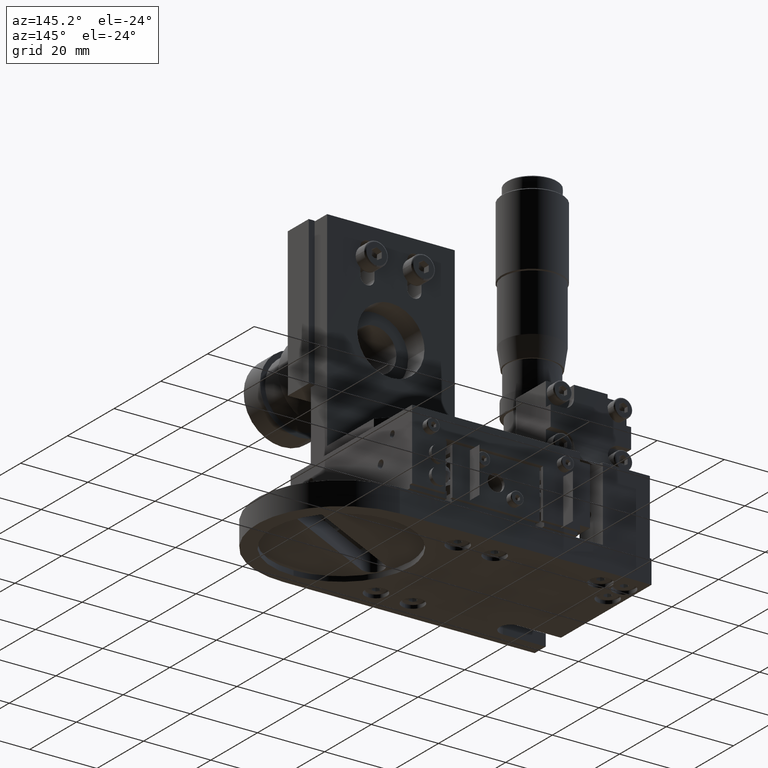
[diagram: clean part render]
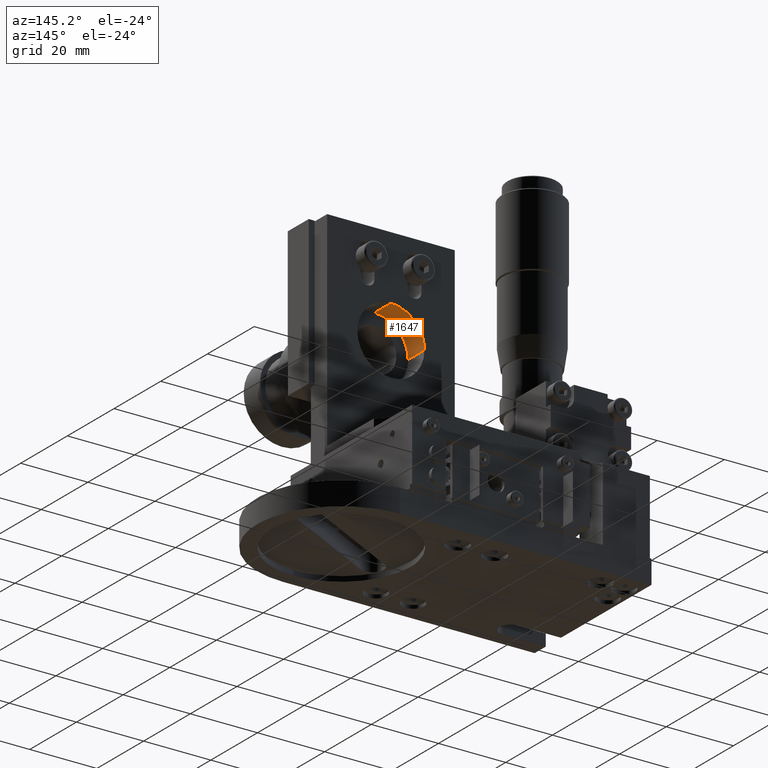
[diagram: same view with one face highlighted and labeled with its STEP entity id]
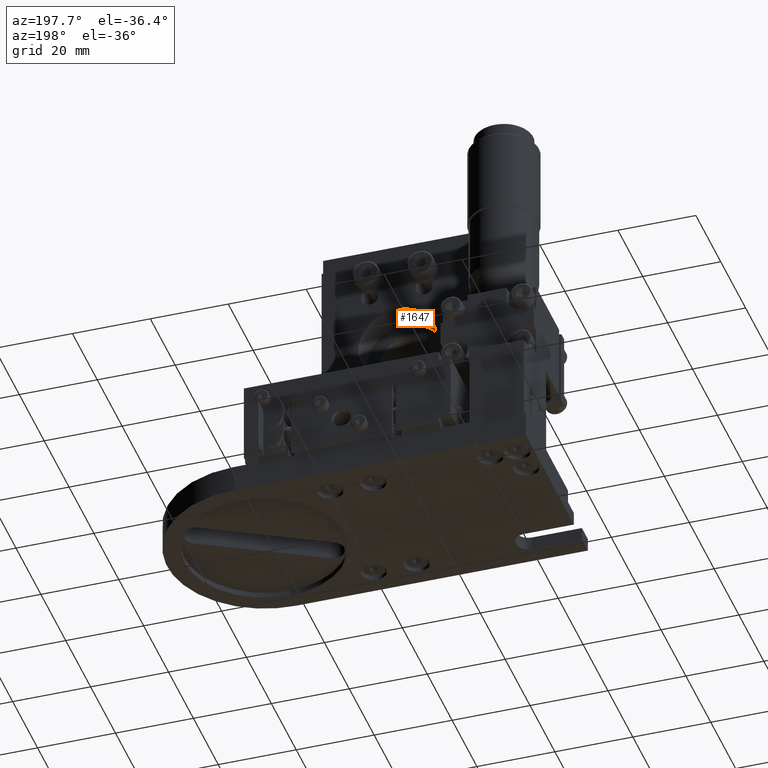
[diagram: same view with one face highlighted and labeled with its STEP entity id]
A machine part, auxiliary view. The second image highlights one B-rep face of the part: STEP entity #1647.
A second angle (auxiliary view) of the same face is appended — the face is thin or edge-on in the first view.
In plain terms, the highlighted face is a freeform B-spline surface patch.
Its self-contained STEP definition (entity closure, byte-faithful):
#147=B_SPLINE_SURFACE_WITH_KNOTS('',1,1,((#39274,#39275),(#39276,#39277)),
 .UNSPECIFIED.,.F.,.F.,.F.,(2,2),(2,2),(-41.9200801138667,3.92008011386633),
(-68.32,6.32000000000002),.UNSPECIFIED.);
#352=B_SPLINE_SURFACE_WITH_KNOTS('',1,1,((#44361,#44362),(#44363,#44364)),
 .UNSPECIFIED.,.F.,.F.,.F.,(2,2),(2,2),(-5.11907293417583,19.1209270658583),
(-12.122765408051,12.1173948197157),.UNSPECIFIED.);
#1647=ADVANCED_FACE('',(#2635),#35953,.T.);
#2635=FACE_OUTER_BOUND('',#3697,.T.);
#3697=EDGE_LOOP('',(#6851,#6852,#6853,#6854));
#6851=ORIENTED_EDGE('',*,*,#26362,.T.);
#6852=ORIENTED_EDGE('',*,*,#25095,.F.);
#6853=ORIENTED_EDGE('',*,*,#26363,.T.);
#6854=ORIENTED_EDGE('',*,*,#26364,.T.);
#9711=(
BOUNDED_CURVE()
B_SPLINE_CURVE(2,(#47091,#47092,#47093),.UNSPECIFIED.,.F.,.F.)
B_SPLINE_CURVE_WITH_KNOTS((3,3),(0.,15.707963267949),.UNSPECIFIED.)
CURVE()
GEOMETRIC_REPRESENTATION_ITEM()
RATIONAL_B_SPLINE_CURVE((1.,0.707106781186547,1.))
REPRESENTATION_ITEM('')
);
#9712=(
BOUNDED_CURVE()
B_SPLINE_CURVE(2,(#47094,#47095,#47096),.UNSPECIFIED.,.F.,.F.)
B_SPLINE_CURVE_WITH_KNOTS((3,3),(0.,15.707963267949),.UNSPECIFIED.)
CURVE()
GEOMETRIC_REPRESENTATION_ITEM()
RATIONAL_B_SPLINE_CURVE((1.,0.707106781186548,1.))
REPRESENTATION_ITEM('')
);
#10552=(
BOUNDED_CURVE()
B_SPLINE_CURVE(2,(#57274,#57275,#57276),.UNSPECIFIED.,.F.,.F.)
B_SPLINE_CURVE_WITH_KNOTS((3,3),(-62.8318530717959,-47.1238898038469),
 .UNSPECIFIED.)
CURVE()
GEOMETRIC_REPRESENTATION_ITEM()
RATIONAL_B_SPLINE_CURVE((1.,0.707106781186559,1.))
REPRESENTATION_ITEM('')
);
#10651=(
BOUNDED_CURVE()
B_SPLINE_CURVE(2,(#58337,#58338,#58339),.UNSPECIFIED.,.F.,.F.)
B_SPLINE_CURVE_WITH_KNOTS((3,3),(-62.8318530717959,-47.1238898038469),
 .UNSPECIFIED.)
CURVE()
GEOMETRIC_REPRESENTATION_ITEM()
RATIONAL_B_SPLINE_CURVE((1.,0.707106781186543,1.))
REPRESENTATION_ITEM('')
);
#11864=PCURVE('',#147,#17154);
#14113=PCURVE('',#35953,#19403);
#14114=PCURVE('',#35953,#19404);
#14115=PCURVE('',#35953,#19405);
#14116=PCURVE('',#35953,#19406);
#14117=PCURVE('',#35954,#19407);
#14120=PCURVE('',#35954,#19410);
#14408=PCURVE('',#352,#19698);
#17154=DEFINITIONAL_REPRESENTATION('',(#9712),#78139);
#19403=DEFINITIONAL_REPRESENTATION('',(#30731),#78139);
#19404=DEFINITIONAL_REPRESENTATION('',(#30732),#78139);
#19405=DEFINITIONAL_REPRESENTATION('',(#30734),#78139);
#19406=DEFINITIONAL_REPRESENTATION('',(#30735),#78139);
#19407=DEFINITIONAL_REPRESENTATION('',(#30736),#78139);
#19410=DEFINITIONAL_REPRESENTATION('',(#30739),#78139);
#19698=DEFINITIONAL_REPRESENTATION('',(#10651),#78139);
#22316=SURFACE_CURVE('',#9711,(#11864,#14114),.PCURVE_S1.);
#23583=SURFACE_CURVE('',#30730,(#14113,#14120),.PCURVE_S1.);
#23584=SURFACE_CURVE('',#30733,(#14115,#14117),.PCURVE_S1.);
#23585=SURFACE_CURVE('',#10552,(#14116,#14408),.PCURVE_S1.);
#25095=EDGE_CURVE('',#33917,#34780,#22316,.T.);
#26362=EDGE_CURVE('',#34778,#34780,#23583,.T.);
#26363=EDGE_CURVE('',#33917,#34779,#23584,.T.);
#26364=EDGE_CURVE('',#34779,#34778,#23585,.T.);
#30730=B_SPLINE_CURVE_WITH_KNOTS('',1,(#57264,#57265),.UNSPECIFIED.,.F.,
 .F.,(2,2),(-7.83610823565233,-0.836108235652268),.UNSPECIFIED.);
#30731=B_SPLINE_CURVE_WITH_KNOTS('',1,(#57266,#57267),.UNSPECIFIED.,.F.,
 .F.,(2,2),(-7.83610823565233,-0.836108235652268),.UNSPECIFIED.);
#30732=B_SPLINE_CURVE_WITH_KNOTS('',1,(#57268,#57269),.UNSPECIFIED.,.F.,
 .F.,(2,2),(0.,15.707963267949),.UNSPECIFIED.);
#30733=B_SPLINE_CURVE_WITH_KNOTS('',1,(#57270,#57271),.UNSPECIFIED.,.F.,
 .F.,(2,2),(0.,7.00000000000006),.UNSPECIFIED.);
#30734=B_SPLINE_CURVE_WITH_KNOTS('',1,(#57272,#57273),.UNSPECIFIED.,.F.,
 .F.,(2,2),(0.,7.00000000000006),.UNSPECIFIED.);
#30735=B_SPLINE_CURVE_WITH_KNOTS('',1,(#57277,#57278),.UNSPECIFIED.,.F.,
 .F.,(2,2),(-62.8318530717959,-47.1238898038469),.UNSPECIFIED.);
#30736=B_SPLINE_CURVE_WITH_KNOTS('',1,(#57279,#57280),.UNSPECIFIED.,.F.,
 .F.,(2,2),(0.,7.00000000000006),.UNSPECIFIED.);
#30739=B_SPLINE_CURVE_WITH_KNOTS('',1,(#57285,#57286),.UNSPECIFIED.,.F.,
 .F.,(2,2),(-7.83610823565233,-0.836108235652268),.UNSPECIFIED.);
#33917=VERTEX_POINT('',#45718);
#34778=VERTEX_POINT('',#46579);
#34779=VERTEX_POINT('',#46580);
#34780=VERTEX_POINT('',#46581);
#35953=(
BOUNDED_SURFACE()
B_SPLINE_SURFACE(1,2,((#43797,#43798,#43799,#43800,#43801,#43802,#43803,
#43804,#43805),(#43806,#43807,#43808,#43809,#43810,#43811,#43812,#43813,
#43814)),.UNSPECIFIED.,.F.,.F.,.F.)
B_SPLINE_SURFACE_WITH_KNOTS((2,2),(3,2,2,2,3),(0.,8.6722164713046),(0.,
1.5707963267949,3.14159265358979,4.71238898038469,6.28318530717959),
 .UNSPECIFIED.)
GEOMETRIC_REPRESENTATION_ITEM()
RATIONAL_B_SPLINE_SURFACE(((1.,0.707106781186548,1.,0.707106781186548,1.,
0.707106781186548,1.,0.707106781186548,1.),(1.,0.707106781186548,1.,0.707106781186548,
1.,0.707106781186548,1.,0.707106781186548,1.)))
REPRESENTATION_ITEM('')
SURFACE()
);
#35954=(
BOUNDED_SURFACE()
B_SPLINE_SURFACE(1,2,((#43815,#43816,#43817,#43818,#43819,#43820,#43821,
#43822,#43823),(#43824,#43825,#43826,#43827,#43828,#43829,#43830,#43831,
#43832)),.UNSPECIFIED.,.F.,.F.,.F.)
B_SPLINE_SURFACE_WITH_KNOTS((2,2),(3,2,2,2,3),(0.,8.6722164713046),(0.,
1.5707963267949,3.14159265358979,4.71238898038469,6.28318530717959),
 .UNSPECIFIED.)
GEOMETRIC_REPRESENTATION_ITEM()
RATIONAL_B_SPLINE_SURFACE(((1.,0.707106781186548,1.,0.707106781186548,1.,
0.707106781186548,1.,0.707106781186548,1.),(1.,0.707106781186548,1.,0.707106781186548,
1.,0.707106781186548,1.,0.707106781186548,1.)))
REPRESENTATION_ITEM('')
SURFACE()
);
#39274=CARTESIAN_POINT('',(218.044839707535,39.8860449572591,-26.0457479532259));
#39275=CARTESIAN_POINT('',(218.044839707535,-34.7539550427409,-26.0457479532261));
#39276=CARTESIAN_POINT('',(172.20468970235,39.8860449572591,-26.0763617796703));
#39277=CARTESIAN_POINT('',(172.20468970235,-34.7539550427409,-26.0763617796704));
#43797=CARTESIAN_POINT('',(185.124208549668,0.566044957259127,-25.2316252028182));
#43798=CARTESIAN_POINT('',(185.124208549668,10.5660449572592,-25.2316252028182));
#43799=CARTESIAN_POINT('',(195.124206319626,10.5660449572592,-25.2249468172516));
#43800=CARTESIAN_POINT('',(205.124204089584,10.5660449572592,-25.2182684316849));
#43801=CARTESIAN_POINT('',(205.124204089584,0.566044957259129,-25.2182684316849));
#43802=CARTESIAN_POINT('',(205.124204089584,-9.43395504274091,-25.2182684316849));
#43803=CARTESIAN_POINT('',(195.124206319626,-9.43395504274091,-25.2249468172516));
#43804=CARTESIAN_POINT('',(185.124208549668,-9.43395504274091,-25.2316252028183));
#43805=CARTESIAN_POINT('',(185.124208549668,0.566044957259127,-25.2316252028182));
#43806=CARTESIAN_POINT('',(185.130000190199,0.566044957259144,-33.9038397401822));
#43807=CARTESIAN_POINT('',(185.130000190199,10.5660449572591,-33.9038397401822));
#43808=CARTESIAN_POINT('',(195.129997960157,10.5660449572591,-33.8971613546155));
#43809=CARTESIAN_POINT('',(205.129995730115,10.5660449572591,-33.8904829690489));
#43810=CARTESIAN_POINT('',(205.129995730115,0.566044957259145,-33.8904829690489));
#43811=CARTESIAN_POINT('',(205.129995730115,-9.43395504274077,-33.8904829690489));
#43812=CARTESIAN_POINT('',(195.129997960157,-9.43395504274077,-33.8971613546156));
#43813=CARTESIAN_POINT('',(185.130000190199,-9.43395504274077,-33.9038397401822));
#43814=CARTESIAN_POINT('',(185.130000190199,0.566044957259144,-33.9038397401822));
#43815=CARTESIAN_POINT('',(185.124208549668,0.566044957259127,-25.2316252028182));
#43816=CARTESIAN_POINT('',(185.124208549668,10.5660449572592,-25.2316252028182));
#43817=CARTESIAN_POINT('',(195.124206319626,10.5660449572592,-25.2249468172516));
#43818=CARTESIAN_POINT('',(205.124204089584,10.5660449572592,-25.2182684316849));
#43819=CARTESIAN_POINT('',(205.124204089584,0.566044957259129,-25.2182684316849));
#43820=CARTESIAN_POINT('',(205.124204089584,-9.43395504274091,-25.2182684316849));
#43821=CARTESIAN_POINT('',(195.124206319626,-9.43395504274091,-25.2249468172516));
#43822=CARTESIAN_POINT('',(185.124208549668,-9.43395504274091,-25.2316252028183));
#43823=CARTESIAN_POINT('',(185.124208549668,0.566044957259127,-25.2316252028182));
#43824=CARTESIAN_POINT('',(185.130000190199,0.566044957259144,-33.9038397401822));
#43825=CARTESIAN_POINT('',(185.130000190199,10.5660449572591,-33.9038397401822));
#43826=CARTESIAN_POINT('',(195.129997960157,10.5660449572591,-33.8971613546155));
#43827=CARTESIAN_POINT('',(205.129995730115,10.5660449572591,-33.8904829690489));
#43828=CARTESIAN_POINT('',(205.129995730115,0.566044957259145,-33.8904829690489));
#43829=CARTESIAN_POINT('',(205.129995730115,-9.43395504274077,-33.8904829690489));
#43830=CARTESIAN_POINT('',(195.129997960157,-9.43395504274077,-33.8971613546156));
#43831=CARTESIAN_POINT('',(185.130000190199,-9.43395504274077,-33.9038397401822));
#43832=CARTESIAN_POINT('',(185.130000190199,0.566044957259144,-33.9038397401822));
#44361=CARTESIAN_POINT('',(207.249516985911,-11.5539550427409,-33.0529590486087));
#44362=CARTESIAN_POINT('',(183.009362163801,-11.553955042775,-33.0691475622288));
#44363=CARTESIAN_POINT('',(207.249516985877,12.6860449572932,-33.0529590486086));
#44364=CARTESIAN_POINT('',(183.009362163767,12.6860449572591,-33.0691475622288));
#45718=CARTESIAN_POINT('',(195.124764704943,-9.43395504274088,-26.0610548664482));
#46579=CARTESIAN_POINT('',(185.129441804882,0.566044957259142,-33.0677316909856));
#46580=CARTESIAN_POINT('',(195.129439574839,-9.43395504274076,-33.0610533054188));
#46581=CARTESIAN_POINT('',(185.124766934985,0.566044957259129,-26.0677332520149));
#47091=CARTESIAN_POINT('',(195.124764704943,-9.43395504274091,-26.0610548664482));
#47092=CARTESIAN_POINT('',(185.124766934985,-9.43395504274091,-26.0677332520148));
#47093=CARTESIAN_POINT('',(185.124766934985,0.566044957259129,-26.0677332520149));
#47094=CARTESIAN_POINT('',(-19.0000000000007,-19.));
#47095=CARTESIAN_POINT('',(-9.00000000000069,-19.));
#47096=CARTESIAN_POINT('',(-9.00000000000071,-29.));
#57264=CARTESIAN_POINT('',(185.129441804882,0.566044957259142,-33.0677316909856));
#57265=CARTESIAN_POINT('',(185.124766934985,0.566044957259129,-26.0677332520149));
#57266=CARTESIAN_POINT('',(7.83610823565233,6.28318530717959));
#57267=CARTESIAN_POINT('',(0.836108235652267,6.28318530717959));
#57268=CARTESIAN_POINT('',(0.836108235652154,4.71238898038469));
#57269=CARTESIAN_POINT('',(0.836108235652267,6.28318530717959));
#57270=CARTESIAN_POINT('',(195.124764704943,-9.43395504274088,-26.0610548664482));
#57271=CARTESIAN_POINT('',(195.129439574839,-9.43395504274076,-33.0610533054188));
#57272=CARTESIAN_POINT('',(0.836108235652154,4.71238898038469));
#57273=CARTESIAN_POINT('',(7.83610823565223,4.71238898038469));
#57274=CARTESIAN_POINT('',(195.129439574839,-9.43395504274075,-33.0610533054188));
#57275=CARTESIAN_POINT('',(185.129441804882,-9.43395504274047,-33.0677316909855));
#57276=CARTESIAN_POINT('',(185.129441804882,0.566044957259142,-33.0677316909856));
#57277=CARTESIAN_POINT('',(7.83610823565223,4.71238898038469));
#57278=CARTESIAN_POINT('',(7.83610823565233,6.28318530717959));
#57279=CARTESIAN_POINT('',(0.836108235652154,4.71238898038469));
#57280=CARTESIAN_POINT('',(7.83610823565223,4.71238898038469));
#57285=CARTESIAN_POINT('',(7.83610823565233,0.));
#57286=CARTESIAN_POINT('',(0.836108235652267,0.));
#58337=CARTESIAN_POINT('',(-2.99907293415878,-0.00268529415362422));
#58338=CARTESIAN_POINT('',(-2.99907293414471,9.99731470584647));
#58339=CARTESIAN_POINT('',(7.00092706585543,9.99731470583231));
#78139=(
GEOMETRIC_REPRESENTATION_CONTEXT(2)
PARAMETRIC_REPRESENTATION_CONTEXT()
REPRESENTATION_CONTEXT('pspace','')
);